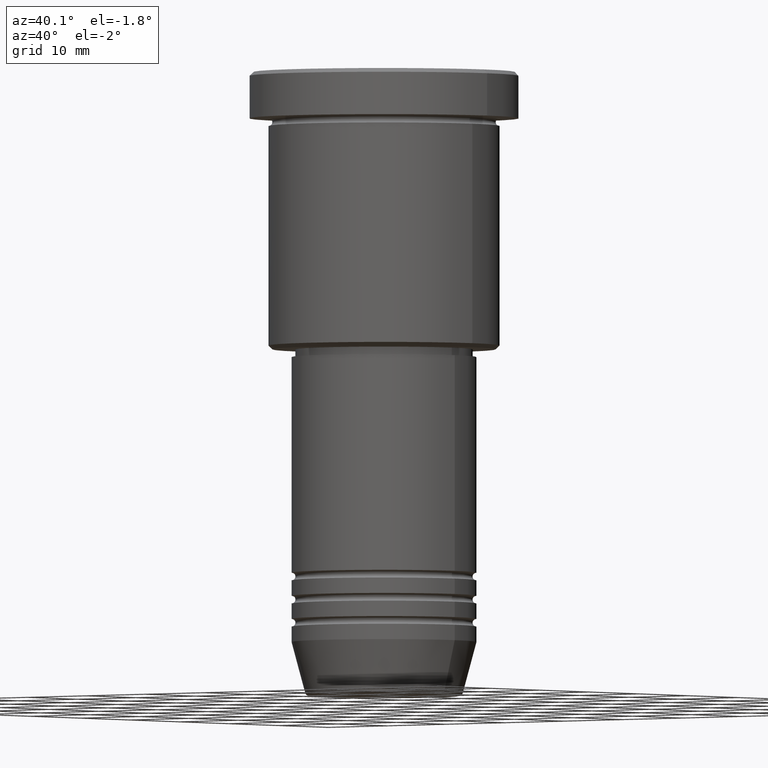
[diagram: clean part render]
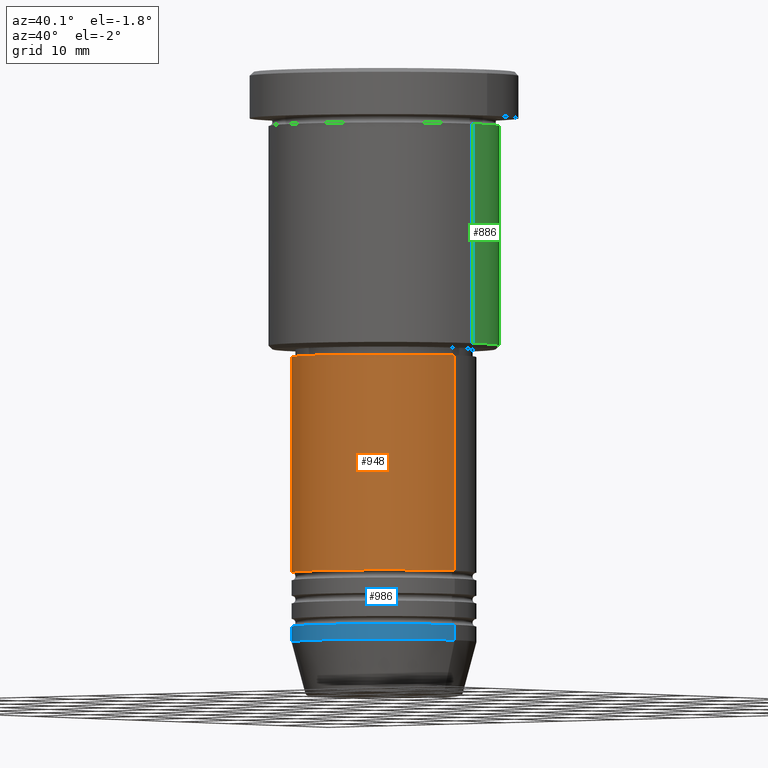
[diagram: same view with three faces highlighted in distinct colors, each labeled with its STEP entity id]
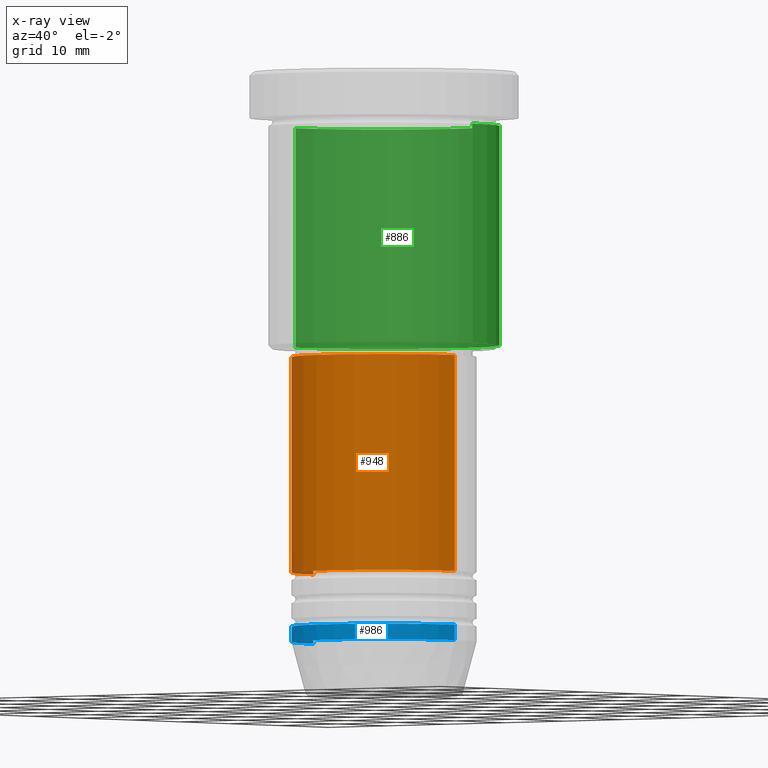
[diagram: x-ray of the same camera — body ghosted, the three highlighted faces saturated]
A machine part, auxiliary view with three faces highlighted in distinct colors.
The next image is the same camera in x-ray (body ghosted, the three faces saturated) — at least one of them is partly hidden behind the body in this view.
Their STEP definitions:

[orange] entity #948 — the highlighted cylindrical surface (partial cylindrical patch) has radius 12 mm, axis along (-0, -0, 1).
#2 = EDGE_CURVE ( 'NONE', #239, #469, #153, .T. ) ;
#50 = CARTESIAN_POINT ( 'NONE',  ( 0.000000000000000000, 0.000000000000000000, 0.000000000000000000 ) ) ;
#87 = ORIENTED_EDGE ( 'NONE', *, *, #1069, .F. ) ;
#88 = ORIENTED_EDGE ( 'NONE', *, *, #2, .F. ) ;
#129 = FACE_OUTER_BOUND ( 'NONE', #454, .T. ) ;
#132 = CARTESIAN_POINT ( 'NONE',  ( -12.00000000000000000, 1.469576158976823947E-15, -37.00000000000000711 ) ) ;
#148 = CARTESIAN_POINT ( 'NONE',  ( 0.000000000000000000, 0.000000000000000000, -37.00000000000000711 ) ) ;
#153 = CIRCLE ( 'NONE', #300, 12.00000000000000000 ) ;
#168 = CARTESIAN_POINT ( 'NONE',  ( -12.00000000000000000, 1.469576158976823947E-15, 0.000000000000000000 ) ) ;
#239 = VERTEX_POINT ( 'NONE', #132 ) ;
#256 = LINE ( 'NONE', #347, #1019 ) ;
#300 = AXIS2_PLACEMENT_3D ( 'NONE', #148, #339, #888 ) ;
#325 = ORIENTED_EDGE ( 'NONE', *, *, #850, .T. ) ;
#339 = DIRECTION ( 'NONE',  ( -0.000000000000000000, -0.000000000000000000, 1.000000000000000000 ) ) ;
#347 = CARTESIAN_POINT ( 'NONE',  ( 12.00000000000000000, 0.000000000000000000, 0.000000000000000000 ) ) ;
#377 = AXIS2_PLACEMENT_3D ( 'NONE', #50, #403, #1145 ) ;
#388 = CARTESIAN_POINT ( 'NONE',  ( -12.00000000000000000, 1.469576158976823947E-15, -64.99999999999997158 ) ) ;
#403 = DIRECTION ( 'NONE',  ( -0.000000000000000000, -0.000000000000000000, 1.000000000000000000 ) ) ;
#423 = VECTOR ( 'NONE', #534, 1000.000000000000000 ) ;
#454 = EDGE_LOOP ( 'NONE', ( #87, #985, #325, #88 ) ) ;
#456 = CARTESIAN_POINT ( 'NONE',  ( 12.00000000000000000, 0.000000000000000000, -37.00000000000000711 ) ) ;
#469 = VERTEX_POINT ( 'NONE', #456 ) ;
#483 = DIRECTION ( 'NONE',  ( -0.000000000000000000, -0.000000000000000000, 1.000000000000000000 ) ) ;
#491 = CYLINDRICAL_SURFACE ( 'NONE', #377, 12.00000000000000000 ) ;
#534 = DIRECTION ( 'NONE',  ( -0.000000000000000000, -0.000000000000000000, 1.000000000000000000 ) ) ;
#654 = AXIS2_PLACEMENT_3D ( 'NONE', #685, #483, #1056 ) ;
#685 = CARTESIAN_POINT ( 'NONE',  ( 0.000000000000000000, 0.000000000000000000, -64.99999999999997158 ) ) ;
#716 = DIRECTION ( 'NONE',  ( -0.000000000000000000, -0.000000000000000000, 1.000000000000000000 ) ) ;
#759 = VERTEX_POINT ( 'NONE', #388 ) ;
#850 = EDGE_CURVE ( 'NONE', #910, #469, #256, .T. ) ;
#888 = DIRECTION ( 'NONE',  ( 1.000000000000000000, 0.000000000000000000, 0.000000000000000000 ) ) ;
#910 = VERTEX_POINT ( 'NONE', #1015 ) ;
#948 = ADVANCED_FACE ( 'NONE', ( #129 ), #491, .T. ) ;
#985 = ORIENTED_EDGE ( 'NONE', *, *, #996, .T. ) ;
#987 = LINE ( 'NONE', #168, #423 ) ;
#996 = EDGE_CURVE ( 'NONE', #759, #910, #1135, .T. ) ;
#1015 = CARTESIAN_POINT ( 'NONE',  ( 12.00000000000000000, 0.000000000000000000, -64.99999999999997158 ) ) ;
#1019 = VECTOR ( 'NONE', #716, 1000.000000000000000 ) ;
#1056 = DIRECTION ( 'NONE',  ( 1.000000000000000000, 0.000000000000000000, 0.000000000000000000 ) ) ;
#1069 = EDGE_CURVE ( 'NONE', #759, #239, #987, .T. ) ;
#1135 = CIRCLE ( 'NONE', #654, 12.00000000000000000 ) ;
#1145 = DIRECTION ( 'NONE',  ( 1.000000000000000000, 0.000000000000000000, 0.000000000000000000 ) ) ;

[blue] entity #986 — the highlighted cylindrical surface (partial cylindrical patch) has radius 12 mm, axis along (-0, -0, 1).
#19 = CARTESIAN_POINT ( 'NONE',  ( 12.00000000000000000, 0.000000000000000000, -74.00000000000000000 ) ) ;
#39 = ORIENTED_EDGE ( 'NONE', *, *, #391, .T. ) ;
#54 = CARTESIAN_POINT ( 'NONE',  ( 0.000000000000000000, 0.000000000000000000, 0.000000000000000000 ) ) ;
#78 = CARTESIAN_POINT ( 'NONE',  ( -12.00000000000000000, 1.469576158976823947E-15, -74.00000000000000000 ) ) ;
#99 = EDGE_CURVE ( 'NONE', #480, #832, #665, .T. ) ;
#134 = DIRECTION ( 'NONE',  ( -0.000000000000000000, -0.000000000000000000, 1.000000000000000000 ) ) ;
#182 = CARTESIAN_POINT ( 'NONE',  ( 0.000000000000000000, 0.000000000000000000, -72.00000000000000000 ) ) ;
#188 = ORIENTED_EDGE ( 'NONE', *, *, #842, .F. ) ;
#223 = CYLINDRICAL_SURFACE ( 'NONE', #1154, 12.00000000000000000 ) ;
#236 = CARTESIAN_POINT ( 'NONE',  ( 12.00000000000000000, 0.000000000000000000, 0.000000000000000000 ) ) ;
#391 = EDGE_CURVE ( 'NONE', #918, #832, #532, .T. ) ;
#406 = EDGE_LOOP ( 'NONE', ( #188, #782, #39, #407 ) ) ;
#407 = ORIENTED_EDGE ( 'NONE', *, *, #99, .F. ) ;
#408 = DIRECTION ( 'NONE',  ( 1.000000000000000000, 0.000000000000000000, 0.000000000000000000 ) ) ;
#462 = VECTOR ( 'NONE', #870, 1000.000000000000000 ) ;
#480 = VERTEX_POINT ( 'NONE', #901 ) ;
#499 = DIRECTION ( 'NONE',  ( 1.000000000000000000, 0.000000000000000000, 0.000000000000000000 ) ) ;
#532 = LINE ( 'NONE', #236, #462 ) ;
#538 = DIRECTION ( 'NONE',  ( 1.000000000000000000, 0.000000000000000000, 0.000000000000000000 ) ) ;
#629 = DIRECTION ( 'NONE',  ( -0.000000000000000000, -0.000000000000000000, 1.000000000000000000 ) ) ;
#665 = CIRCLE ( 'NONE', #727, 12.00000000000000000 ) ;
#707 = AXIS2_PLACEMENT_3D ( 'NONE', #770, #1038, #499 ) ;
#727 = AXIS2_PLACEMENT_3D ( 'NONE', #182, #629, #538 ) ;
#770 = CARTESIAN_POINT ( 'NONE',  ( 0.000000000000000000, 0.000000000000000000, -74.00000000000000000 ) ) ;
#782 = ORIENTED_EDGE ( 'NONE', *, *, #954, .T. ) ;
#832 = VERTEX_POINT ( 'NONE', #1158 ) ;
#842 = EDGE_CURVE ( 'NONE', #1021, #480, #1088, .T. ) ;
#866 = VECTOR ( 'NONE', #1064, 1000.000000000000000 ) ;
#868 = FACE_OUTER_BOUND ( 'NONE', #406, .T. ) ;
#870 = DIRECTION ( 'NONE',  ( -0.000000000000000000, -0.000000000000000000, 1.000000000000000000 ) ) ;
#901 = CARTESIAN_POINT ( 'NONE',  ( -12.00000000000000000, 1.469576158976823947E-15, -72.00000000000000000 ) ) ;
#918 = VERTEX_POINT ( 'NONE', #19 ) ;
#954 = EDGE_CURVE ( 'NONE', #1021, #918, #1078, .T. ) ;
#986 = ADVANCED_FACE ( 'NONE', ( #868 ), #223, .T. ) ;
#1021 = VERTEX_POINT ( 'NONE', #78 ) ;
#1038 = DIRECTION ( 'NONE',  ( -0.000000000000000000, -0.000000000000000000, 1.000000000000000000 ) ) ;
#1064 = DIRECTION ( 'NONE',  ( -0.000000000000000000, -0.000000000000000000, 1.000000000000000000 ) ) ;
#1078 = CIRCLE ( 'NONE', #707, 12.00000000000000000 ) ;
#1088 = LINE ( 'NONE', #1178, #866 ) ;
#1154 = AXIS2_PLACEMENT_3D ( 'NONE', #54, #134, #408 ) ;
#1158 = CARTESIAN_POINT ( 'NONE',  ( 12.00000000000000000, 0.000000000000000000, -72.00000000000000000 ) ) ;
#1178 = CARTESIAN_POINT ( 'NONE',  ( -12.00000000000000000, 1.469576158976823947E-15, 0.000000000000000000 ) ) ;

[green] entity #886 — the highlighted cylindrical surface (partial cylindrical patch) has radius 15 mm, axis along (-0, -0, 1).
#5 = ORIENTED_EDGE ( 'NONE', *, *, #133, .T. ) ;
#15 = DIRECTION ( 'NONE',  ( -0.000000000000000000, -0.000000000000000000, 1.000000000000000000 ) ) ;
#64 = DIRECTION ( 'NONE',  ( -1.000000000000000000, 0.000000000000000000, 0.000000000000000000 ) ) ;
#86 = VERTEX_POINT ( 'NONE', #812 ) ;
#120 = CIRCLE ( 'NONE', #576, 15.00000000000000000 ) ;
#133 = EDGE_CURVE ( 'NONE', #255, #290, #823, .T. ) ;
#138 = CIRCLE ( 'NONE', #375, 15.00000000000000000 ) ;
#211 = CARTESIAN_POINT ( 'NONE',  ( -15.00000000000000000, 1.836970198721029589E-15, -35.49999999999999289 ) ) ;
#213 = AXIS2_PLACEMENT_3D ( 'NONE', #1105, #15, #366 ) ;
#219 = EDGE_CURVE ( 'NONE', #86, #266, #1046, .T. ) ;
#255 = VERTEX_POINT ( 'NONE', #211 ) ;
#266 = VERTEX_POINT ( 'NONE', #495 ) ;
#290 = VERTEX_POINT ( 'NONE', #933 ) ;
#319 = DIRECTION ( 'NONE',  ( -0.000000000000000000, -0.000000000000000000, 1.000000000000000000 ) ) ;
#352 = ORIENTED_EDGE ( 'NONE', *, *, #749, .T. ) ;
#361 = FACE_OUTER_BOUND ( 'NONE', #808, .T. ) ;
#366 = DIRECTION ( 'NONE',  ( 1.000000000000000000, 0.000000000000000000, 0.000000000000000000 ) ) ;
#375 = AXIS2_PLACEMENT_3D ( 'NONE', #946, #588, #64 ) ;
#447 = EDGE_CURVE ( 'NONE', #266, #290, #120, .T. ) ;
#455 = CYLINDRICAL_SURFACE ( 'NONE', #213, 15.00000000000000000 ) ;
#495 = CARTESIAN_POINT ( 'NONE',  ( 15.00000000000000000, 0.000000000000000000, -6.999999999999995559 ) ) ;
#560 = ORIENTED_EDGE ( 'NONE', *, *, #219, .F. ) ;
#576 = AXIS2_PLACEMENT_3D ( 'NONE', #781, #319, #1060 ) ;
#588 = DIRECTION ( 'NONE',  ( -0.000000000000000000, -0.000000000000000000, 1.000000000000000000 ) ) ;
#671 = CARTESIAN_POINT ( 'NONE',  ( 15.00000000000000000, 0.000000000000000000, 0.000000000000000000 ) ) ;
#687 = VECTOR ( 'NONE', #903, 1000.000000000000000 ) ;
#749 = EDGE_CURVE ( 'NONE', #86, #255, #138, .T. ) ;
#781 = CARTESIAN_POINT ( 'NONE',  ( 0.000000000000000000, 0.000000000000000000, -6.999999999999995559 ) ) ;
#808 = EDGE_LOOP ( 'NONE', ( #352, #5, #994, #560 ) ) ;
#812 = CARTESIAN_POINT ( 'NONE',  ( 15.00000000000000000, 0.000000000000000000, -35.49999999999999289 ) ) ;
#823 = LINE ( 'NONE', #1006, #687 ) ;
#824 = VECTOR ( 'NONE', #1033, 1000.000000000000000 ) ;
#886 = ADVANCED_FACE ( 'NONE', ( #361 ), #455, .T. ) ;
#903 = DIRECTION ( 'NONE',  ( -0.000000000000000000, -0.000000000000000000, 1.000000000000000000 ) ) ;
#933 = CARTESIAN_POINT ( 'NONE',  ( -15.00000000000000000, 1.836970198721029589E-15, -6.999999999999995559 ) ) ;
#946 = CARTESIAN_POINT ( 'NONE',  ( 0.000000000000000000, 0.000000000000000000, -35.49999999999999289 ) ) ;
#994 = ORIENTED_EDGE ( 'NONE', *, *, #447, .F. ) ;
#1006 = CARTESIAN_POINT ( 'NONE',  ( -15.00000000000000000, 1.836970198721029589E-15, 0.000000000000000000 ) ) ;
#1033 = DIRECTION ( 'NONE',  ( -0.000000000000000000, -0.000000000000000000, 1.000000000000000000 ) ) ;
#1046 = LINE ( 'NONE', #671, #824 ) ;
#1060 = DIRECTION ( 'NONE',  ( 1.000000000000000000, 0.000000000000000000, 0.000000000000000000 ) ) ;
#1105 = CARTESIAN_POINT ( 'NONE',  ( 0.000000000000000000, 0.000000000000000000, 0.000000000000000000 ) ) ;